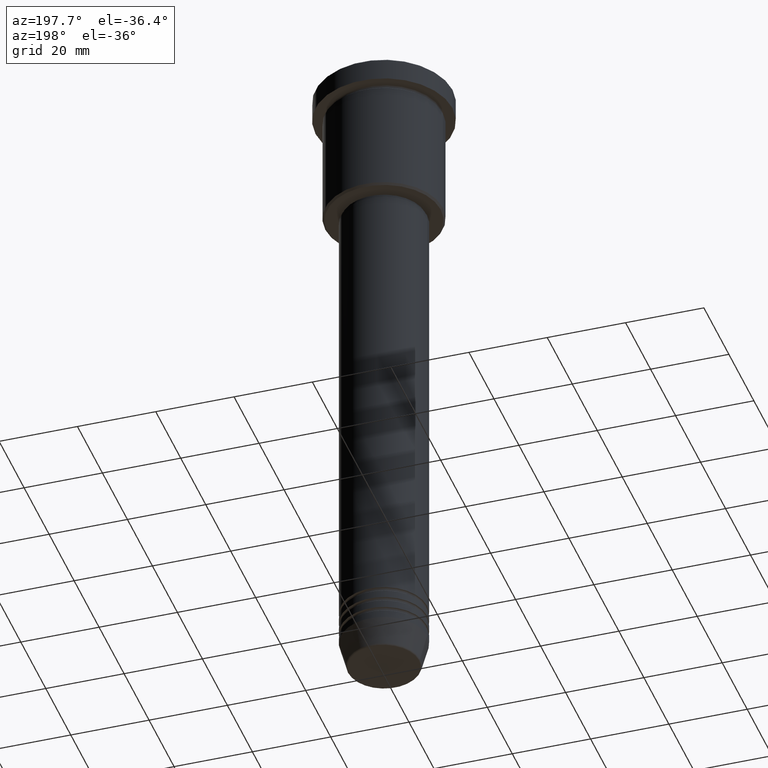
[diagram: clean part render]
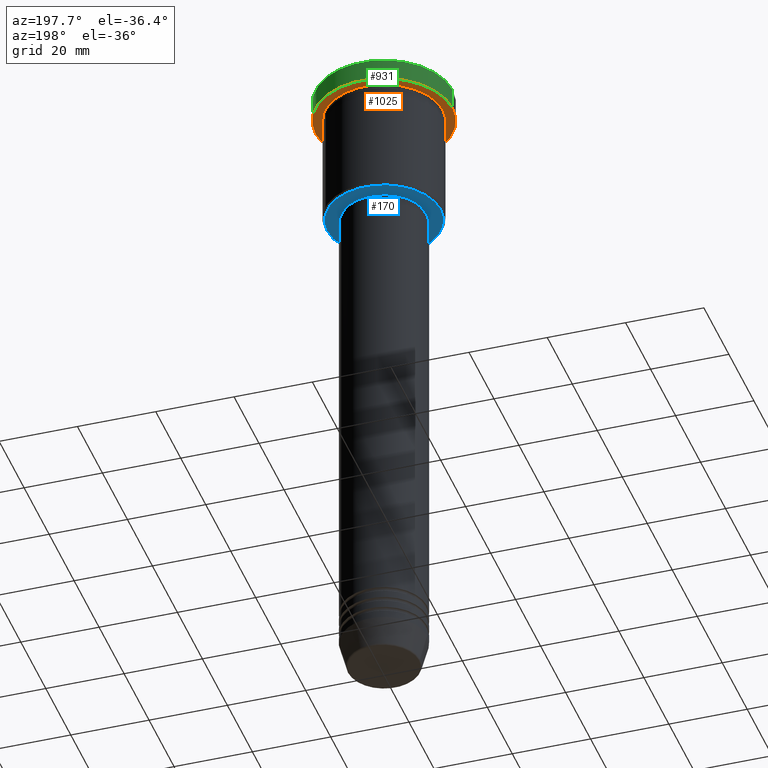
[diagram: same view with three faces highlighted in distinct colors, each labeled with its STEP entity id]
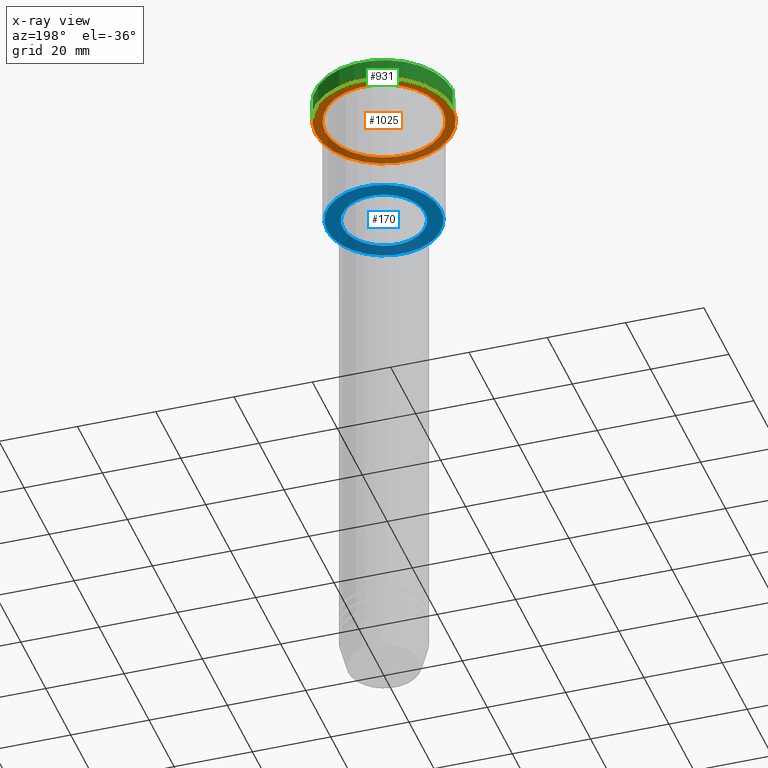
[diagram: x-ray of the same camera — body ghosted, the three highlighted faces saturated]
A machine part, auxiliary view with three faces highlighted in distinct colors.
The next image is the same camera in x-ray (body ghosted, the three faces saturated) — at least one of them is partly hidden behind the body in this view.
Their STEP definitions:

[orange] entity #1025 — the highlighted planar face has unit normal (0, 0, -1).
#51 = ORIENTED_EDGE ( 'NONE', *, *, #762, .F. ) ;
#57 = AXIS2_PLACEMENT_3D ( 'NONE', #325, #785, #300 ) ;
#61 = AXIS2_PLACEMENT_3D ( 'NONE', #62, #73, #1074 ) ;
#62 = CARTESIAN_POINT ( 'NONE',  ( 0.000000000000000000, 0.000000000000000000, -5.999999999999995559 ) ) ;
#73 = DIRECTION ( 'NONE',  ( -0.000000000000000000, -0.000000000000000000, 1.000000000000000000 ) ) ;
#167 = DIRECTION ( 'NONE',  ( -1.000000000000000000, 0.000000000000000000, 0.000000000000000000 ) ) ;
#228 = EDGE_CURVE ( 'NONE', #277, #578, #600, .T. ) ;
#277 = VERTEX_POINT ( 'NONE', #997 ) ;
#285 = AXIS2_PLACEMENT_3D ( 'NONE', #459, #832, #1008 ) ;
#300 = DIRECTION ( 'NONE',  ( 1.000000000000000000, 0.000000000000000000, 0.000000000000000000 ) ) ;
#325 = CARTESIAN_POINT ( 'NONE',  ( 0.000000000000000000, 0.000000000000000000, -5.999999999999995559 ) ) ;
#338 = ORIENTED_EDGE ( 'NONE', *, *, #1178, .T. ) ;
#366 = CARTESIAN_POINT ( 'NONE',  ( -15.00000000000000000, 0.000000000000000000, -5.999999999999994671 ) ) ;
#387 = ORIENTED_EDGE ( 'NONE', *, *, #228, .F. ) ;
#410 = CIRCLE ( 'NONE', #496, 15.00000000000000000 ) ;
#423 = VERTEX_POINT ( 'NONE', #1160 ) ;
#425 = EDGE_LOOP ( 'NONE', ( #387, #51 ) ) ;
#459 = CARTESIAN_POINT ( 'NONE',  ( 0.000000000000000000, 0.000000000000000000, -5.999999999999995559 ) ) ;
#473 = FACE_BOUND ( 'NONE', #969, .T. ) ;
#496 = AXIS2_PLACEMENT_3D ( 'NONE', #910, #633, #167 ) ;
#557 = FACE_OUTER_BOUND ( 'NONE', #425, .T. ) ;
#561 = EDGE_CURVE ( 'NONE', #423, #1051, #776, .T. ) ;
#578 = VERTEX_POINT ( 'NONE', #953 ) ;
#600 = CIRCLE ( 'NONE', #57, 17.50000000000000000 ) ;
#633 = DIRECTION ( 'NONE',  ( -0.000000000000000000, -0.000000000000000000, 1.000000000000000000 ) ) ;
#652 = DIRECTION ( 'NONE',  ( 0.000000000000000000, 0.000000000000000000, -1.000000000000000000 ) ) ;
#762 = EDGE_CURVE ( 'NONE', #578, #277, #806, .T. ) ;
#776 = CIRCLE ( 'NONE', #285, 15.00000000000000000 ) ;
#785 = DIRECTION ( 'NONE',  ( -0.000000000000000000, -0.000000000000000000, 1.000000000000000000 ) ) ;
#806 = CIRCLE ( 'NONE', #61, 17.50000000000000000 ) ;
#832 = DIRECTION ( 'NONE',  ( -0.000000000000000000, -0.000000000000000000, 1.000000000000000000 ) ) ;
#851 = DIRECTION ( 'NONE',  ( -1.000000000000000000, 0.000000000000000000, -0.000000000000000000 ) ) ;
#864 = AXIS2_PLACEMENT_3D ( 'NONE', #914, #652, #851 ) ;
#910 = CARTESIAN_POINT ( 'NONE',  ( 0.000000000000000000, 0.000000000000000000, -5.999999999999995559 ) ) ;
#914 = CARTESIAN_POINT ( 'NONE',  ( 0.000000000000000000, 17.50000000000000000, -5.999999999999995559 ) ) ;
#921 = ORIENTED_EDGE ( 'NONE', *, *, #561, .T. ) ;
#953 = CARTESIAN_POINT ( 'NONE',  ( -17.50000000000000000, 2.143131898507868248E-15, -5.999999999999995559 ) ) ;
#969 = EDGE_LOOP ( 'NONE', ( #338, #921 ) ) ;
#997 = CARTESIAN_POINT ( 'NONE',  ( 17.50000000000000000, 0.000000000000000000, -5.999999999999995559 ) ) ;
#1008 = DIRECTION ( 'NONE',  ( -1.000000000000000000, 0.000000000000000000, 0.000000000000000000 ) ) ;
#1025 = ADVANCED_FACE ( 'NONE', ( #473, #557 ), #1179, .T. ) ;
#1051 = VERTEX_POINT ( 'NONE', #366 ) ;
#1074 = DIRECTION ( 'NONE',  ( 1.000000000000000000, 0.000000000000000000, 0.000000000000000000 ) ) ;
#1160 = CARTESIAN_POINT ( 'NONE',  ( 15.00000000000000000, 1.836970198721029589E-15, -5.999999999999994671 ) ) ;
#1178 = EDGE_CURVE ( 'NONE', #1051, #423, #410, .T. ) ;
#1179 = PLANE ( 'NONE',  #864 ) ;

[blue] entity #170 — the highlighted planar face has unit normal (0, 0, -1).
#32 = ORIENTED_EDGE ( 'NONE', *, *, #870, .T. ) ;
#67 = DIRECTION ( 'NONE',  ( 0.000000000000000000, 0.000000000000000000, -1.000000000000000000 ) ) ;
#69 = DIRECTION ( 'NONE',  ( -1.000000000000000000, 0.000000000000000000, 0.000000000000000000 ) ) ;
#72 = EDGE_LOOP ( 'NONE', ( #1022, #837 ) ) ;
#170 = ADVANCED_FACE ( 'NONE', ( #964, #500 ), #775, .T. ) ;
#173 = VERTEX_POINT ( 'NONE', #950 ) ;
#184 = CARTESIAN_POINT ( 'NONE',  ( 10.49999999999999822, 0.000000000000000000, -35.99999999999999289 ) ) ;
#192 = DIRECTION ( 'NONE',  ( 0.000000000000000000, 0.000000000000000000, -1.000000000000000000 ) ) ;
#229 = CARTESIAN_POINT ( 'NONE',  ( 0.000000000000000000, 15.00000000000000000, -35.99999999999999289 ) ) ;
#257 = CARTESIAN_POINT ( 'NONE',  ( 0.000000000000000000, 0.000000000000000000, -35.99999999999999289 ) ) ;
#306 = AXIS2_PLACEMENT_3D ( 'NONE', #343, #669, #678 ) ;
#336 = VERTEX_POINT ( 'NONE', #779 ) ;
#343 = CARTESIAN_POINT ( 'NONE',  ( 0.000000000000000000, 0.000000000000000000, -35.99999999999999289 ) ) ;
#426 = DIRECTION ( 'NONE',  ( -1.000000000000000000, 0.000000000000000000, 0.000000000000000000 ) ) ;
#500 = FACE_BOUND ( 'NONE', #533, .T. ) ;
#533 = EDGE_LOOP ( 'NONE', ( #32, #708 ) ) ;
#594 = DIRECTION ( 'NONE',  ( 0.000000000000000000, 0.000000000000000000, -1.000000000000000000 ) ) ;
#604 = CIRCLE ( 'NONE', #1120, 14.49999999999996980 ) ;
#661 = CARTESIAN_POINT ( 'NONE',  ( -10.49999999999999822, 1.285879139104720633E-15, -35.99999999999999289 ) ) ;
#669 = DIRECTION ( 'NONE',  ( -0.000000000000000000, -0.000000000000000000, 1.000000000000000000 ) ) ;
#678 = DIRECTION ( 'NONE',  ( 1.000000000000000000, 0.000000000000000000, 0.000000000000000000 ) ) ;
#687 = CIRCLE ( 'NONE', #306, 10.49999999999999822 ) ;
#708 = ORIENTED_EDGE ( 'NONE', *, *, #745, .T. ) ;
#718 = EDGE_CURVE ( 'NONE', #336, #173, #916, .T. ) ;
#723 = DIRECTION ( 'NONE',  ( 1.000000000000000000, 0.000000000000000000, 0.000000000000000000 ) ) ;
#745 = EDGE_CURVE ( 'NONE', #1062, #951, #1063, .T. ) ;
#775 = PLANE ( 'NONE',  #970 ) ;
#779 = CARTESIAN_POINT ( 'NONE',  ( 14.49999999999996980, 0.000000000000000000, -35.99999999999999289 ) ) ;
#837 = ORIENTED_EDGE ( 'NONE', *, *, #980, .T. ) ;
#862 = AXIS2_PLACEMENT_3D ( 'NONE', #1154, #904, #723 ) ;
#868 = DIRECTION ( 'NONE',  ( -1.000000000000000000, 0.000000000000000000, -0.000000000000000000 ) ) ;
#870 = EDGE_CURVE ( 'NONE', #951, #1062, #687, .T. ) ;
#904 = DIRECTION ( 'NONE',  ( -0.000000000000000000, -0.000000000000000000, 1.000000000000000000 ) ) ;
#916 = CIRCLE ( 'NONE', #974, 14.49999999999996980 ) ;
#950 = CARTESIAN_POINT ( 'NONE',  ( -14.49999999999996980, 1.806354028742344224E-15, -35.99999999999999289 ) ) ;
#951 = VERTEX_POINT ( 'NONE', #184 ) ;
#964 = FACE_OUTER_BOUND ( 'NONE', #72, .T. ) ;
#970 = AXIS2_PLACEMENT_3D ( 'NONE', #229, #594, #868 ) ;
#974 = AXIS2_PLACEMENT_3D ( 'NONE', #257, #67, #426 ) ;
#980 = EDGE_CURVE ( 'NONE', #173, #336, #604, .T. ) ;
#1013 = CARTESIAN_POINT ( 'NONE',  ( 0.000000000000000000, 0.000000000000000000, -35.99999999999999289 ) ) ;
#1022 = ORIENTED_EDGE ( 'NONE', *, *, #718, .T. ) ;
#1062 = VERTEX_POINT ( 'NONE', #661 ) ;
#1063 = CIRCLE ( 'NONE', #862, 10.49999999999999822 ) ;
#1120 = AXIS2_PLACEMENT_3D ( 'NONE', #1013, #192, #69 ) ;
#1154 = CARTESIAN_POINT ( 'NONE',  ( 0.000000000000000000, 0.000000000000000000, -35.99999999999999289 ) ) ;

[green] entity #931 — the highlighted cylindrical surface (partial cylindrical patch) has radius 17.5 mm, axis along (-0, -0, 1).
#30 = VECTOR ( 'NONE', #94, 1000.000000000000000 ) ;
#49 = CIRCLE ( 'NONE', #506, 17.50000000000000000 ) ;
#57 = AXIS2_PLACEMENT_3D ( 'NONE', #325, #785, #300 ) ;
#94 = DIRECTION ( 'NONE',  ( -0.000000000000000000, -0.000000000000000000, 1.000000000000000000 ) ) ;
#118 = CARTESIAN_POINT ( 'NONE',  ( 17.50000000000000000, 0.000000000000000000, 0.000000000000000000 ) ) ;
#140 = EDGE_CURVE ( 'NONE', #277, #154, #388, .T. ) ;
#154 = VERTEX_POINT ( 'NONE', #508 ) ;
#175 = CARTESIAN_POINT ( 'NONE',  ( 0.000000000000000000, 0.000000000000000000, 0.000000000000000000 ) ) ;
#176 = CARTESIAN_POINT ( 'NONE',  ( -17.50000000000000000, 2.143131898507868248E-15, 0.000000000000000000 ) ) ;
#205 = AXIS2_PLACEMENT_3D ( 'NONE', #175, #1083, #1001 ) ;
#228 = EDGE_CURVE ( 'NONE', #277, #578, #600, .T. ) ;
#265 = ORIENTED_EDGE ( 'NONE', *, *, #872, .T. ) ;
#268 = LINE ( 'NONE', #176, #30 ) ;
#274 = CYLINDRICAL_SURFACE ( 'NONE', #205, 17.50000000000000000 ) ;
#277 = VERTEX_POINT ( 'NONE', #997 ) ;
#286 = FACE_OUTER_BOUND ( 'NONE', #1031, .T. ) ;
#300 = DIRECTION ( 'NONE',  ( 1.000000000000000000, 0.000000000000000000, 0.000000000000000000 ) ) ;
#325 = CARTESIAN_POINT ( 'NONE',  ( 0.000000000000000000, 0.000000000000000000, -5.999999999999995559 ) ) ;
#388 = LINE ( 'NONE', #118, #715 ) ;
#391 = DIRECTION ( 'NONE',  ( 0.000000000000000000, 0.000000000000000000, -1.000000000000000000 ) ) ;
#448 = VERTEX_POINT ( 'NONE', #841 ) ;
#488 = CARTESIAN_POINT ( 'NONE',  ( 0.000000000000000000, 0.000000000000000000, -0.4999999999999727995 ) ) ;
#506 = AXIS2_PLACEMENT_3D ( 'NONE', #488, #391, #769 ) ;
#508 = CARTESIAN_POINT ( 'NONE',  ( 17.50000000000000000, 0.000000000000000000, -0.4999999999999727995 ) ) ;
#578 = VERTEX_POINT ( 'NONE', #953 ) ;
#600 = CIRCLE ( 'NONE', #57, 17.50000000000000000 ) ;
#715 = VECTOR ( 'NONE', #1112, 1000.000000000000000 ) ;
#725 = ORIENTED_EDGE ( 'NONE', *, *, #140, .F. ) ;
#769 = DIRECTION ( 'NONE',  ( 1.000000000000000000, 0.000000000000000000, 0.000000000000000000 ) ) ;
#785 = DIRECTION ( 'NONE',  ( -0.000000000000000000, -0.000000000000000000, 1.000000000000000000 ) ) ;
#841 = CARTESIAN_POINT ( 'NONE',  ( -17.50000000000000000, 2.143131898507868248E-15, -0.4999999999999727995 ) ) ;
#861 = ORIENTED_EDGE ( 'NONE', *, *, #228, .T. ) ;
#872 = EDGE_CURVE ( 'NONE', #448, #154, #49, .T. ) ;
#931 = ADVANCED_FACE ( 'NONE', ( #286 ), #274, .T. ) ;
#938 = ORIENTED_EDGE ( 'NONE', *, *, #966, .T. ) ;
#953 = CARTESIAN_POINT ( 'NONE',  ( -17.50000000000000000, 2.143131898507868248E-15, -5.999999999999995559 ) ) ;
#966 = EDGE_CURVE ( 'NONE', #578, #448, #268, .T. ) ;
#997 = CARTESIAN_POINT ( 'NONE',  ( 17.50000000000000000, 0.000000000000000000, -5.999999999999995559 ) ) ;
#1001 = DIRECTION ( 'NONE',  ( 1.000000000000000000, 0.000000000000000000, 0.000000000000000000 ) ) ;
#1031 = EDGE_LOOP ( 'NONE', ( #861, #938, #265, #725 ) ) ;
#1083 = DIRECTION ( 'NONE',  ( -0.000000000000000000, -0.000000000000000000, 1.000000000000000000 ) ) ;
#1112 = DIRECTION ( 'NONE',  ( -0.000000000000000000, -0.000000000000000000, 1.000000000000000000 ) ) ;